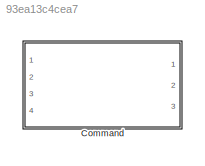
MODEL slx_93ea13c4cea7
KIND library
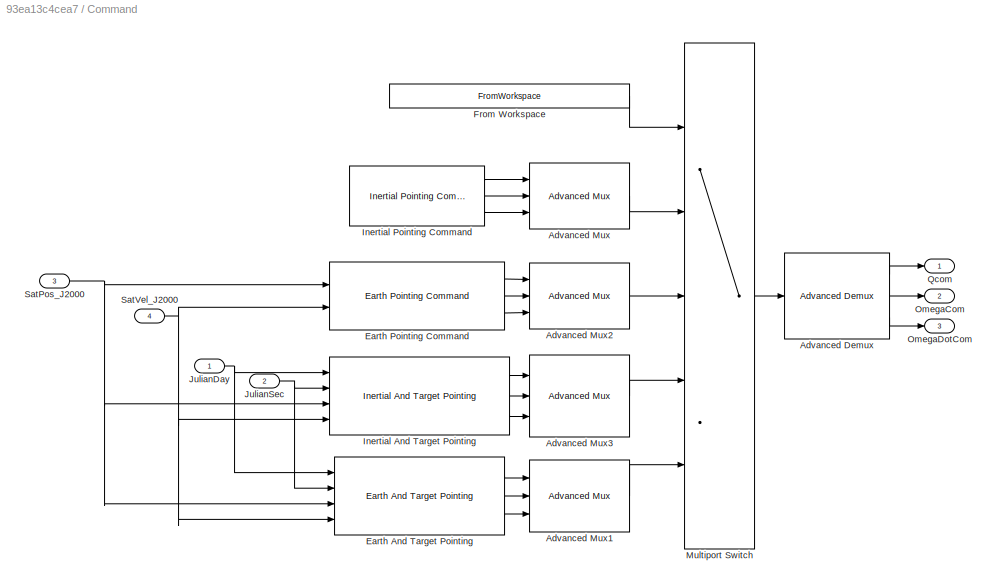
BLOCK [SubSystem] Command
  Ports = [4, 3]
  RequestExecContextInheritance = off
BLOCK [Reference] Command/Advanced Demux  REF=AdvancedDemux/Advanced Demux
  Ports = [1, 3]
  SourceBlock = AdvancedDemux/Advanced Demux
  SourceType = SubSystem
BLOCK [Reference] Command/Advanced Mux  REF=AdvancedMux/Advanced Mux
  Ports = [3, 1]
  SourceBlock = AdvancedMux/Advanced Mux
  SourceType = SubSystem
BLOCK [Reference] Command/Advanced Mux1  REF=AdvancedMux/Advanced Mux
  Ports = [3, 1]
  SourceBlock = AdvancedMux/Advanced Mux
  SourceType = SubSystem
BLOCK [Reference] Command/Advanced Mux2  REF=AdvancedMux/Advanced Mux
  Ports = [3, 1]
  SourceBlock = AdvancedMux/Advanced Mux
  SourceType = SubSystem
BLOCK [Reference] Command/Advanced Mux3  REF=AdvancedMux/Advanced Mux
  Ports = [3, 1]
  SourceBlock = AdvancedMux/Advanced Mux
  SourceType = SubSystem
BLOCK [Reference] Command/Earth And Target Pointing  REF=EarthAndTargetPointing/Earth And Target Pointing
  Ports = [4, 3]
  SourceBlock = EarthAndTargetPointing/Earth And Target Pointing
  SourceType = SubSystem
BLOCK [Reference] Command/Earth Pointing Command   REF=EarthPointing/Earth Pointing Command
  Ports = [2, 3]
  SourceBlock = EarthPointing/Earth Pointing Command
  SourceType = SubSystem
BLOCK [FromWorkspace] Command/From Workspace
  Interpolate = off
  OutputAfterFinalValue = Holding final value
  SampleTime = 0
  VariableName = ConfParam.confCommand.CommandProfile
  ZeroCross = on
BLOCK [Reference] Command/Inertial And Target Pointing   REF=InertialAndTargetPointing/Inertial And Target Pointing 
  Ports = [4, 3]
  SourceBlock = InertialAndTargetPointing/Inertial And Target Pointing
  SourceType = SubSystem
BLOCK [Reference] Command/Inertial Pointing Command  REF=InertialPointing/Inertial Pointing Command
  Ports = [0, 3]
  SourceBlock = InertialPointing/Inertial Pointing Command
  SourceType = SubSystem
BLOCK [Inport] Command/JulianDay
  IconDisplay = Port number
BLOCK [Inport] Command/JulianSec
  IconDisplay = Port number
  Port = 2
BLOCK [MultiPortSwitch] Command/Multiport Switch
  InputSameDT = off
  Inputs = 4
  Ports = [5, 1]
  SampleTime = ConfParam.confOrbit.dt
  SaturateOnIntegerOverflow = off
BLOCK [Outport] Command/OmegaCom
  IconDisplay = Port number
  Port = 2
BLOCK [Outport] Command/OmegaDotCom
  IconDisplay = Port number
  Port = 3
BLOCK [Outport] Command/Qcom
  IconDisplay = Port number
BLOCK [Inport] Command/SatPos_J2000
  IconDisplay = Port number
  Port = 3
BLOCK [Inport] Command/SatVel_J2000
  IconDisplay = Port number
  Port = 4
LINE Command/Advanced Demux:1 -> Command/Qcom:1
LINE Command/Advanced Demux:2 -> Command/OmegaCom:1
LINE Command/Advanced Demux:3 -> Command/OmegaDotCom:1
LINE Command/Advanced Mux1:1 -> Command/Multiport Switch:5
LINE Command/Advanced Mux2:1 -> Command/Multiport Switch:3
LINE Command/Advanced Mux3:1 -> Command/Multiport Switch:4
LINE Command/Advanced Mux:1 -> Command/Multiport Switch:2
LINE Command/Earth And Target Pointing:1 -> Command/Advanced Mux1:1
LINE Command/Earth And Target Pointing:2 -> Command/Advanced Mux1:2
LINE Command/Earth And Target Pointing:3 -> Command/Advanced Mux1:3
LINE Command/Earth Pointing Command :1 -> Command/Advanced Mux2:1
LINE Command/Earth Pointing Command :2 -> Command/Advanced Mux2:2
LINE Command/Earth Pointing Command :3 -> Command/Advanced Mux2:3
LINE Command/From Workspace:1 -> Command/Multiport Switch:1
LINE Command/Inertial And Target Pointing :1 -> Command/Advanced Mux3:1
LINE Command/Inertial And Target Pointing :2 -> Command/Advanced Mux3:2
LINE Command/Inertial And Target Pointing :3 -> Command/Advanced Mux3:3
LINE Command/Inertial Pointing Command:1 -> Command/Advanced Mux:1
LINE Command/Inertial Pointing Command:2 -> Command/Advanced Mux:2
LINE Command/Inertial Pointing Command:3 -> Command/Advanced Mux:3
NET Command/JulianDay:1 -> Command/Earth And Target Pointing:1, Command/Inertial And Target Pointing :1
NET Command/JulianSec:1 -> Command/Earth And Target Pointing:2, Command/Inertial And Target Pointing :2
LINE Command/Multiport Switch:1 -> Command/Advanced Demux:1
NET Command/SatPos_J2000:1 -> Command/Earth And Target Pointing:3, Command/Earth Pointing Command :1, Command/Inertial And Target Pointing :3
NET Command/SatVel_J2000:1 -> Command/Earth And Target Pointing:4, Command/Earth Pointing Command :2, Command/Inertial And Target Pointing :4
note: NET lines group one-source signal fan-out (src -> all destinations, sorted); 1:1 wires keep LINE
